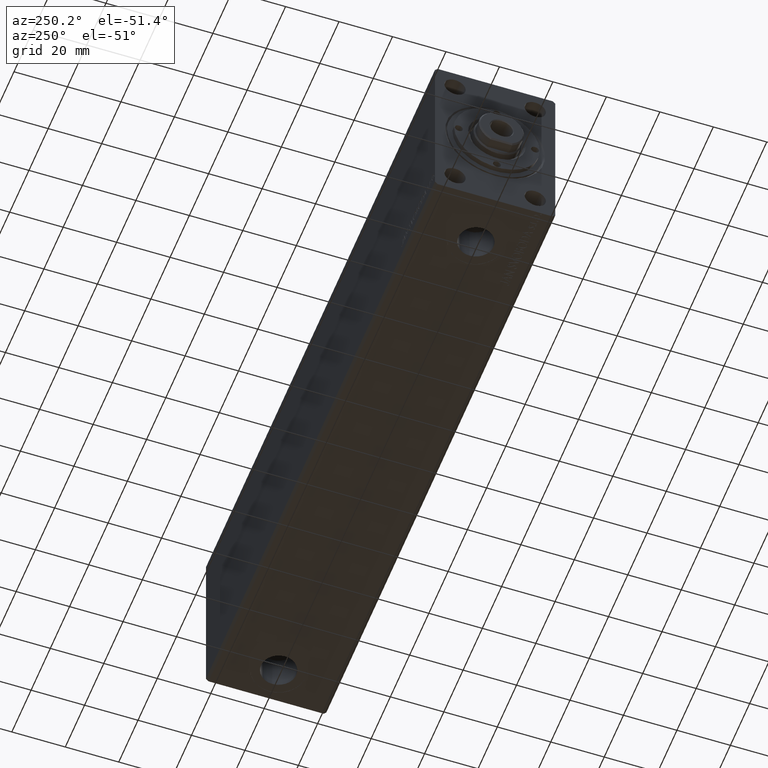
[diagram: clean part render]
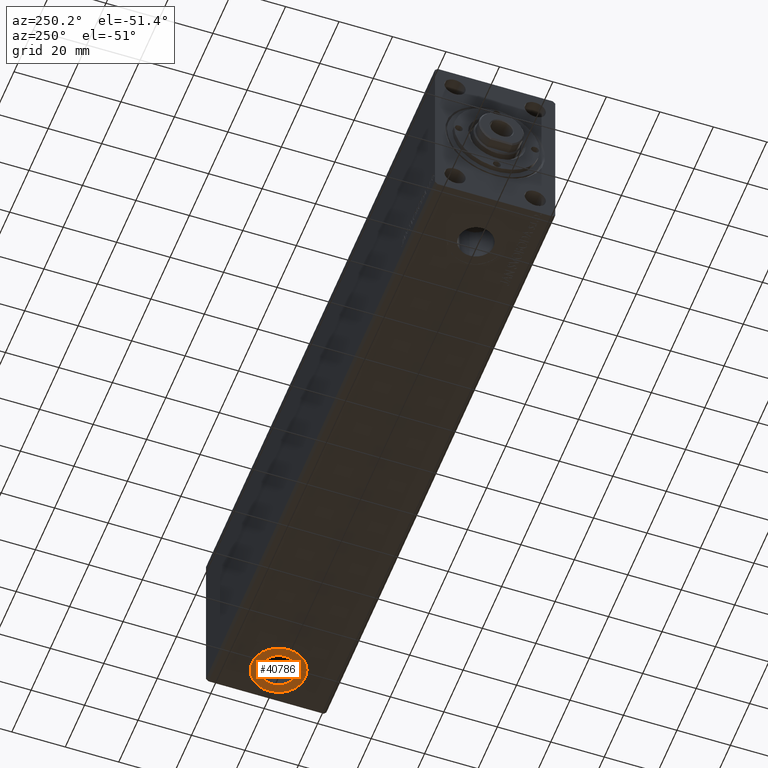
[diagram: same view with one face highlighted and labeled with its STEP entity id]
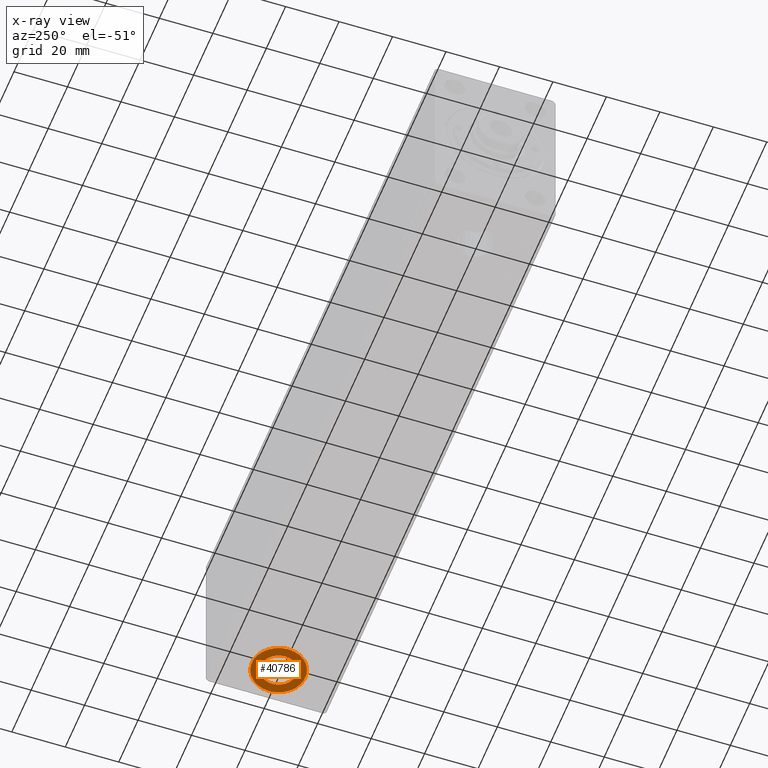
[diagram: x-ray of the same camera — body ghosted, the highlighted face saturated]
A machine part, auxiliary view. The second image highlights one B-rep face of the part: STEP entity #40786.
The next image is the same camera in x-ray: the body ghosted, the highlighted face saturated — about 0% of this face is hidden behind the body in this view.
In plain terms, the highlighted planar face has unit normal (0, 0, -1).
Its self-contained STEP definition (entity closure, byte-faithful):
#8 = DIRECTION ( 'NONE',  ( 0.000000000000000000, 0.000000000000000000, -1.000000000000000000 ) ) ;
#1311 = VERTEX_POINT ( 'NONE', #4677 ) ;
#2747 = VERTEX_POINT ( 'NONE', #8736 ) ;
#4411 = ORIENTED_EDGE ( 'NONE', *, *, #41512, .F. ) ;
#4677 = CARTESIAN_POINT ( 'NONE',  ( 231.5799999999999841, -2.170524518744146761E-14, -32.39999999999999858 ) ) ;
#4787 = DIRECTION ( 'NONE',  ( -1.000000000000000000, 0.000000000000000000, 0.000000000000000000 ) ) ;
#5300 = CIRCLE ( 'NONE', #22413, 10.00000000000000888 ) ;
#5457 = DIRECTION ( 'NONE',  ( 0.000000000000000000, 0.000000000000000000, -1.000000000000000000 ) ) ;
#6277 = CARTESIAN_POINT ( 'NONE',  ( 224.9999999999999716, -2.251106278128042665E-14, -32.39999999999999858 ) ) ;
#7066 = EDGE_CURVE ( 'NONE', #2747, #35932, #5300, .T. ) ;
#8736 = CARTESIAN_POINT ( 'NONE',  ( 235.0000000000000000, -2.128641598213307202E-14, -32.39999999999999858 ) ) ;
#8986 = ORIENTED_EDGE ( 'NONE', *, *, #7066, .T. ) ;
#10553 = AXIS2_PLACEMENT_3D ( 'NONE', #24261, #14212, #37422 ) ;
#11703 = EDGE_LOOP ( 'NONE', ( #34139, #8986 ) ) ;
#12746 = DIRECTION ( 'NONE',  ( -1.000000000000000000, 0.000000000000000000, 0.000000000000000000 ) ) ;
#14212 = DIRECTION ( 'NONE',  ( 0.000000000000000000, 0.000000000000000000, -1.000000000000000000 ) ) ;
#15584 = CIRCLE ( 'NONE', #33393, 6.580000000000002736 ) ;
#15715 = CARTESIAN_POINT ( 'NONE',  ( 224.9999999999999716, -2.251106278128042981E-14, -32.39999999999999858 ) ) ;
#17141 = VERTEX_POINT ( 'NONE', #35137 ) ;
#19673 = DIRECTION ( 'NONE',  ( 0.000000000000000000, 0.000000000000000000, -1.000000000000000000 ) ) ;
#20164 = EDGE_CURVE ( 'NONE', #35932, #2747, #30493, .T. ) ;
#21844 = DIRECTION ( 'NONE',  ( -1.000000000000000000, 0.000000000000000000, 0.000000000000000000 ) ) ;
#22413 = AXIS2_PLACEMENT_3D ( 'NONE', #6277, #19673, #12746 ) ;
#22719 = CARTESIAN_POINT ( 'NONE',  ( 214.9999999999999716, -2.251106278128042665E-14, -32.39999999999999858 ) ) ;
#22809 = EDGE_CURVE ( 'NONE', #1311, #17141, #15584, .T. ) ;
#23237 = FACE_BOUND ( 'NONE', #29959, .T. ) ;
#24261 = CARTESIAN_POINT ( 'NONE',  ( 224.9999999999999716, -2.251106278128042665E-14, -32.39999999999999858 ) ) ;
#26576 = FACE_OUTER_BOUND ( 'NONE', #11703, .T. ) ;
#26822 = ORIENTED_EDGE ( 'NONE', *, *, #22809, .F. ) ;
#27281 = AXIS2_PLACEMENT_3D ( 'NONE', #30569, #8, #27449 ) ;
#27449 = DIRECTION ( 'NONE',  ( -1.000000000000000000, 0.000000000000000000, -0.000000000000000000 ) ) ;
#29919 = PLANE ( 'NONE',  #27281 ) ;
#29959 = EDGE_LOOP ( 'NONE', ( #4411, #26822 ) ) ;
#30493 = CIRCLE ( 'NONE', #10553, 10.00000000000000888 ) ;
#30569 = CARTESIAN_POINT ( 'NONE',  ( 224.9999999999999716, -2.251106278128042665E-14, -32.39999999999999858 ) ) ;
#31530 = CIRCLE ( 'NONE', #37962, 6.580000000000002736 ) ;
#32088 = CARTESIAN_POINT ( 'NONE',  ( 224.9999999999999716, -2.251106278128042981E-14, -32.39999999999999858 ) ) ;
#33393 = AXIS2_PLACEMENT_3D ( 'NONE', #32088, #42575, #21844 ) ;
#34139 = ORIENTED_EDGE ( 'NONE', *, *, #20164, .T. ) ;
#35137 = CARTESIAN_POINT ( 'NONE',  ( 218.4199999999999875, -2.251106278128042981E-14, -32.39999999999999858 ) ) ;
#35932 = VERTEX_POINT ( 'NONE', #22719 ) ;
#37422 = DIRECTION ( 'NONE',  ( -1.000000000000000000, 0.000000000000000000, 0.000000000000000000 ) ) ;
#37962 = AXIS2_PLACEMENT_3D ( 'NONE', #15715, #5457, #4787 ) ;
#40786 = ADVANCED_FACE ( 'NONE', ( #23237, #26576 ), #29919, .T. ) ;
#41512 = EDGE_CURVE ( 'NONE', #17141, #1311, #31530, .T. ) ;
#42575 = DIRECTION ( 'NONE',  ( 0.000000000000000000, 0.000000000000000000, -1.000000000000000000 ) ) ;